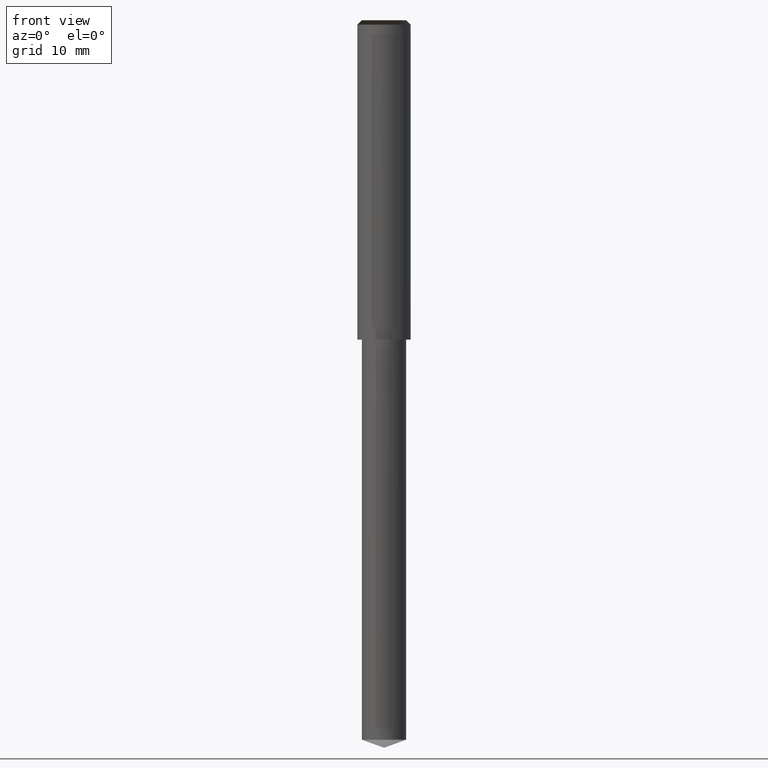
[diagram: clean part render]
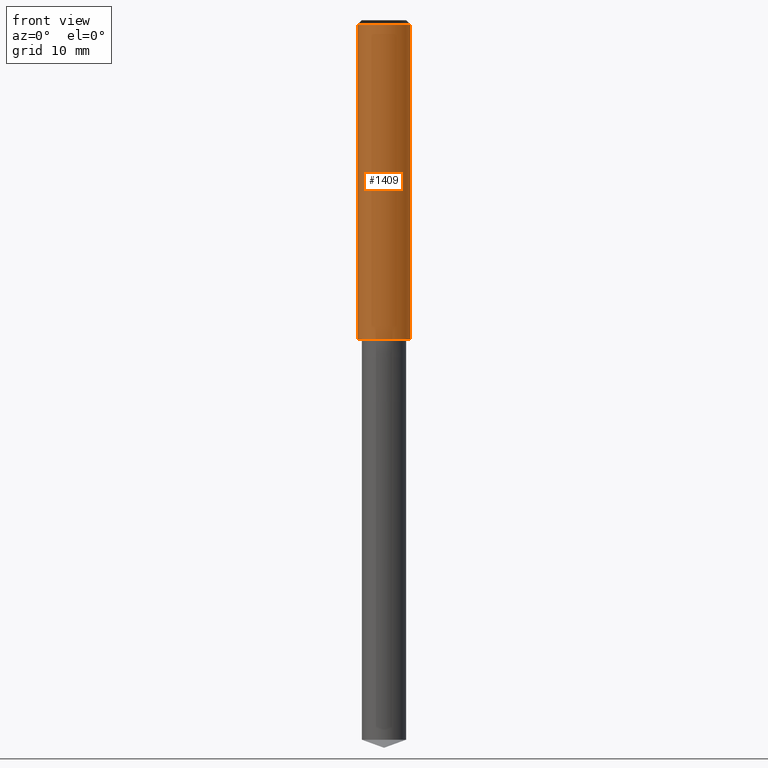
[diagram: same view with one face highlighted and labeled with its STEP entity id]
A machine part, front view. The second image highlights one B-rep face of the part: STEP entity #1409.
In plain terms, the highlighted face is a freeform B-spline surface patch.
Its self-contained STEP definition (entity closure, byte-faithful):
#1038=CARTESIAN_POINT('',(3.0,0.0,0.0));
#1042=CARTESIAN_POINT('',(-3.0,0.0,0.0));
#1043=CARTESIAN_POINT('',(3.0,0.0,35.5));
#1047=CARTESIAN_POINT('',(-3.0,0.0,35.5));
#1060=CARTESIAN_POINT('',(-3.0,-3.0,0.0));
#1061=CARTESIAN_POINT('',(0.0,-3.0,0.0));
#1062=CARTESIAN_POINT('',(3.0,-3.0,0.0));
#1063=CARTESIAN_POINT('',(-3.0,-3.0,35.5));
#1064=CARTESIAN_POINT('',(0.0,-3.0,35.5));
#1065=CARTESIAN_POINT('',(3.0,-3.0,35.5));
#1390=(
BOUNDED_SURFACE()
B_SPLINE_SURFACE(1,2,(
(#1042,#1060,#1061,#1062,#1038),
(#1047,#1063,#1064,#1065,#1043)
), .UNSPECIFIED.,.F.,.F.,.F.)
B_SPLINE_SURFACE_WITH_KNOTS((2,2),(3,2,3),(
0.0,1.0),(
0.0,0.5,1.0), .UNSPECIFIED.)
GEOMETRIC_REPRESENTATION_ITEM()
RATIONAL_B_SPLINE_SURFACE(((1.0,0.707106781187,1.0,0.707106781187,1.0),
(1.0,0.707106781187,1.0,0.707106781187,1.0)
))
REPRESENTATION_ITEM('')
SURFACE()
);
#1391=(
BOUNDED_CURVE()
B_SPLINE_CURVE(2,(#1038,#1062,#1061,#1060,#1042),.UNSPECIFIED.,.F.,.F.)
B_SPLINE_CURVE_WITH_KNOTS((3,2,3),
(0.0,0.5,1.0),.UNSPECIFIED.)
CURVE()
GEOMETRIC_REPRESENTATION_ITEM()
RATIONAL_B_SPLINE_CURVE((1.0,0.707106781187,1.0,0.707106781187,1.0))
REPRESENTATION_ITEM('')
);
#1392=(
BOUNDED_CURVE()
B_SPLINE_CURVE(1,(#1042,#1047),.UNSPECIFIED.,.F.,.F.)
B_SPLINE_CURVE_WITH_KNOTS((2,2),
(0.0,1.0),.UNSPECIFIED.)
CURVE()
GEOMETRIC_REPRESENTATION_ITEM()
RATIONAL_B_SPLINE_CURVE((1.0,1.0))
REPRESENTATION_ITEM('')
);
#1393=(
BOUNDED_CURVE()
B_SPLINE_CURVE(2,(#1047,#1063,#1064,#1065,#1043),.UNSPECIFIED.,.F.,.F.)
B_SPLINE_CURVE_WITH_KNOTS((3,2,3),
(0.0,0.5,1.0),.UNSPECIFIED.)
CURVE()
GEOMETRIC_REPRESENTATION_ITEM()
RATIONAL_B_SPLINE_CURVE((1.0,0.707106781187,1.0,0.707106781187,1.0))
REPRESENTATION_ITEM('')
);
#1394=(
BOUNDED_CURVE()
B_SPLINE_CURVE(1,(#1043,#1038),.UNSPECIFIED.,.F.,.F.)
B_SPLINE_CURVE_WITH_KNOTS((2,2),
(0.0,1.0),.UNSPECIFIED.)
CURVE()
GEOMETRIC_REPRESENTATION_ITEM()
RATIONAL_B_SPLINE_CURVE((1.0,1.0))
REPRESENTATION_ITEM('')
);
#1395=VERTEX_POINT('',#1038);
#1396=VERTEX_POINT('',#1042);
#1397=VERTEX_POINT('',#1043);
#1398=VERTEX_POINT('',#1047);
#1399=EDGE_CURVE('',#1395,#1396,#1391,.T.);
#1400=EDGE_CURVE('',#1396,#1398,#1392,.T.);
#1401=EDGE_CURVE('',#1398,#1397,#1393,.T.);
#1402=EDGE_CURVE('',#1397,#1395,#1394,.T.);
#1403=ORIENTED_EDGE('',*,*,#1399,.T.);
#1404=ORIENTED_EDGE('',*,*,#1400,.T.);
#1405=ORIENTED_EDGE('',*,*,#1401,.T.);
#1406=ORIENTED_EDGE('',*,*,#1402,.T.);
#1407=EDGE_LOOP('',(#1403,#1404,#1405,#1406));
#1408=FACE_OUTER_BOUND('',#1407,.T.);
#1409=ADVANCED_FACE('',(#1408),#1390,.T.);